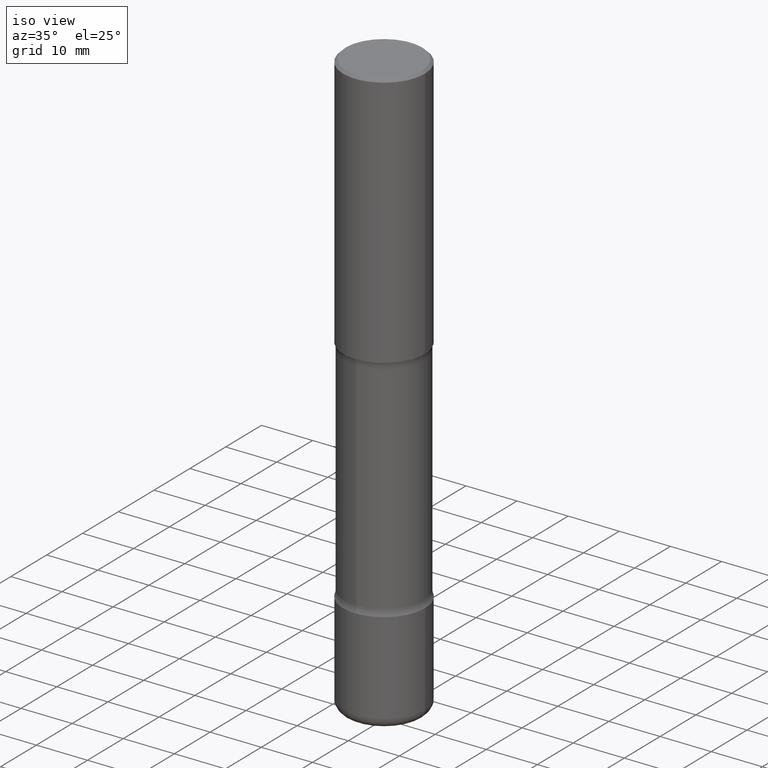
[diagram: clean part render]
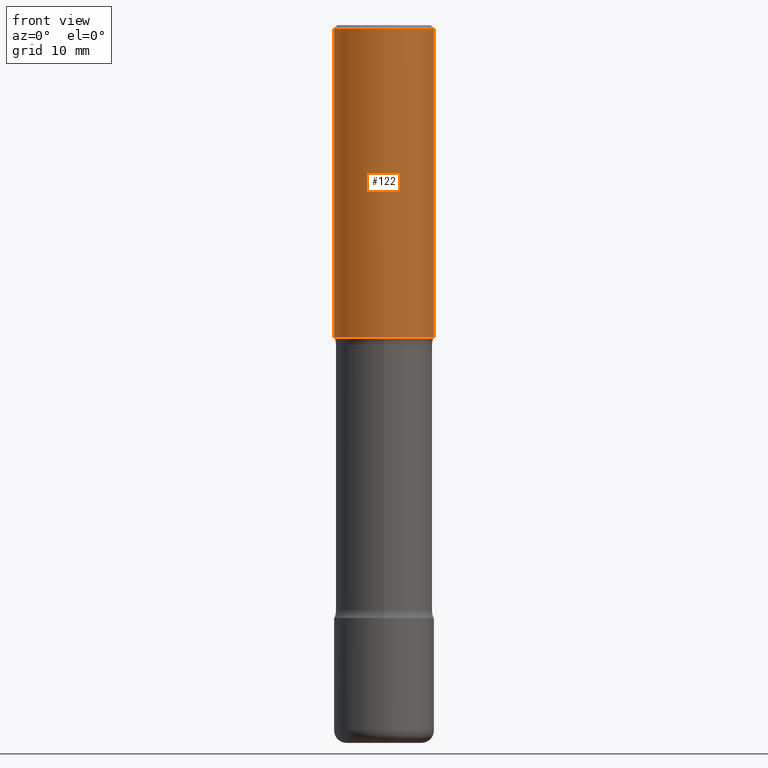
[diagram: tour spotlight — one face highlighted and labeled with its STEP entity id]
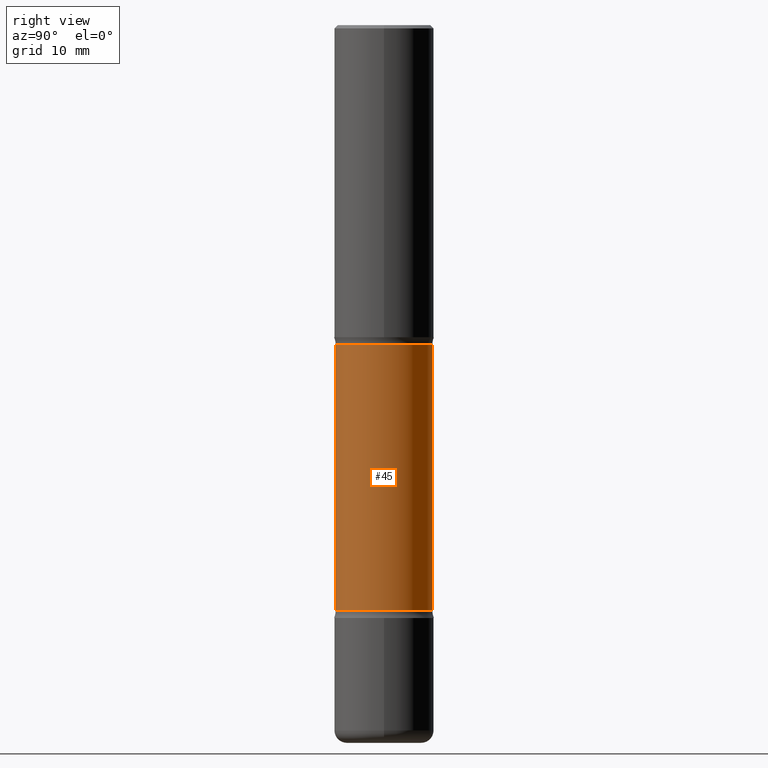
[diagram: tour spotlight — one face highlighted and labeled with its STEP entity id]
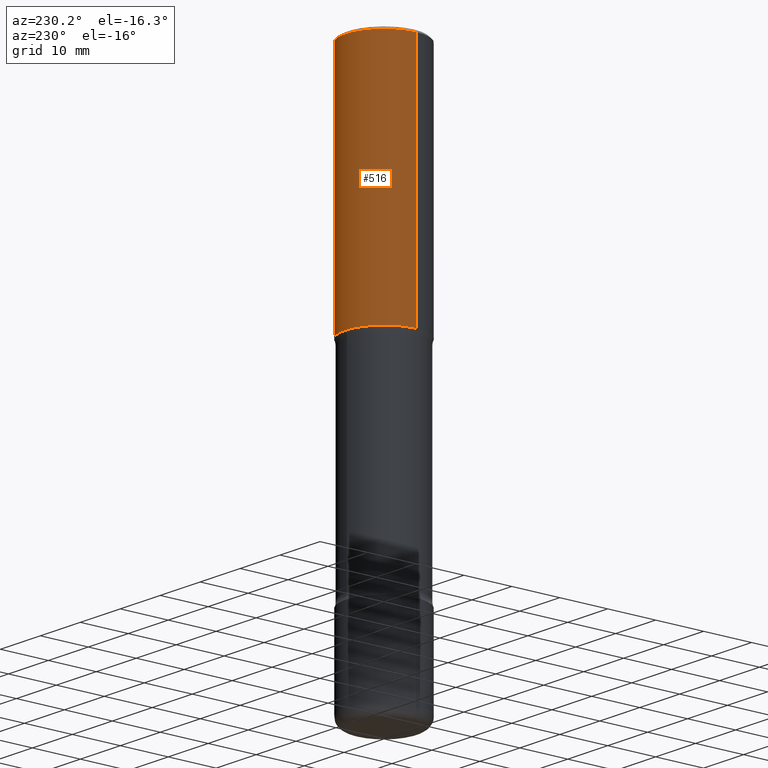
[diagram: tour spotlight — one face highlighted and labeled with its STEP entity id]
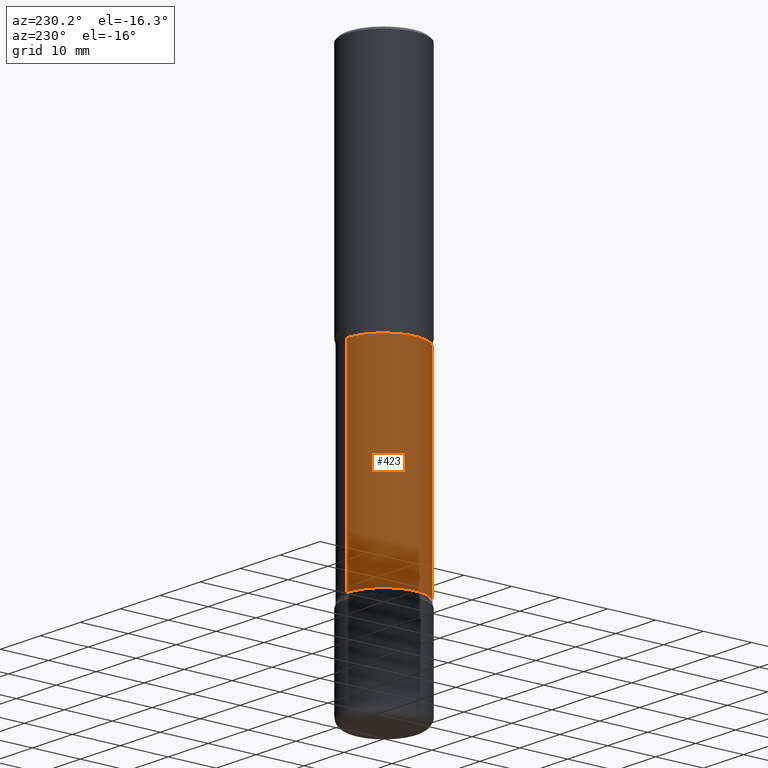
[diagram: tour spotlight — one face highlighted and labeled with its STEP entity id]
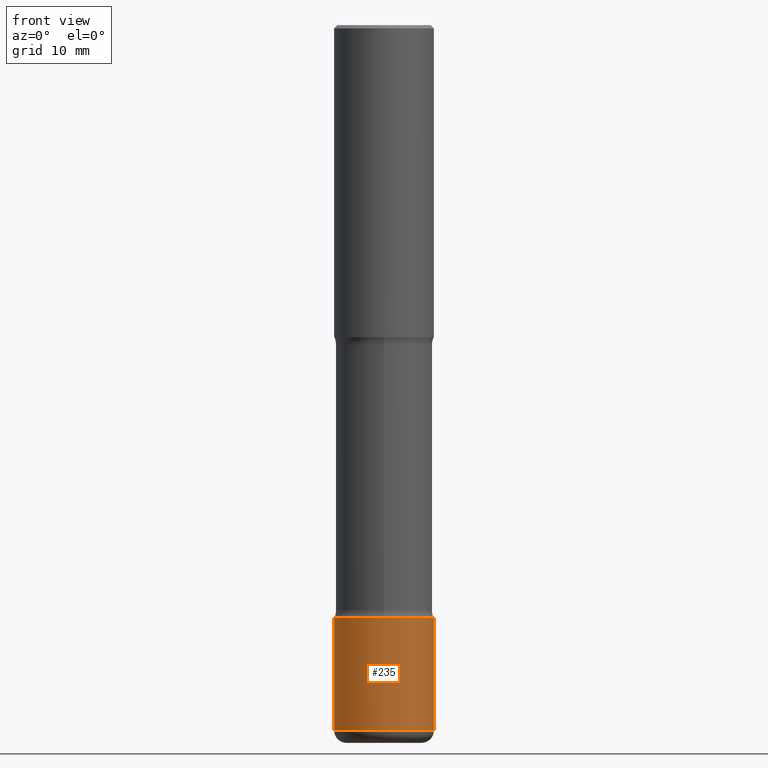
[diagram: tour spotlight — one face highlighted and labeled with its STEP entity id]
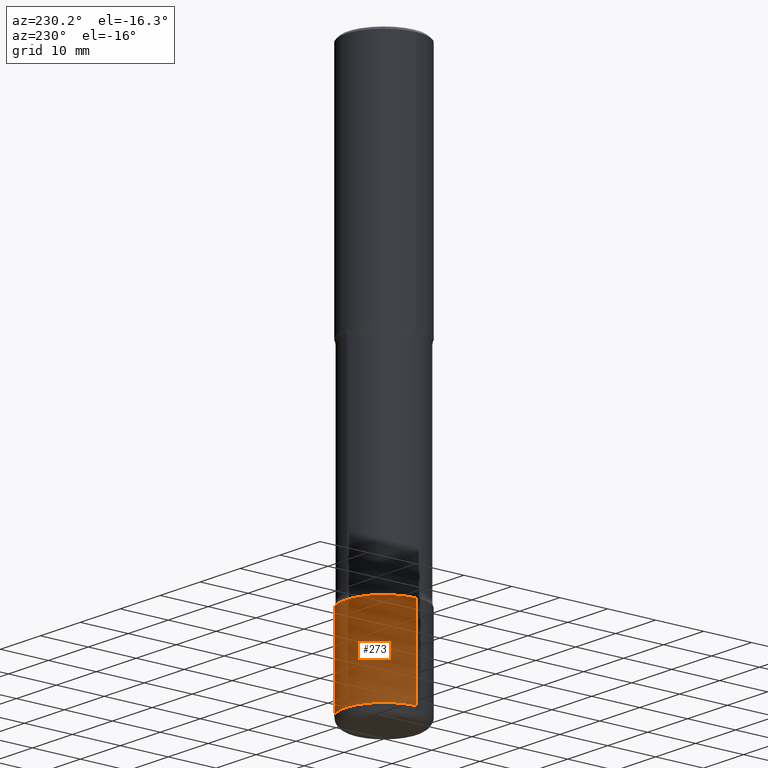
[diagram: tour spotlight — one face highlighted and labeled with its STEP entity id]
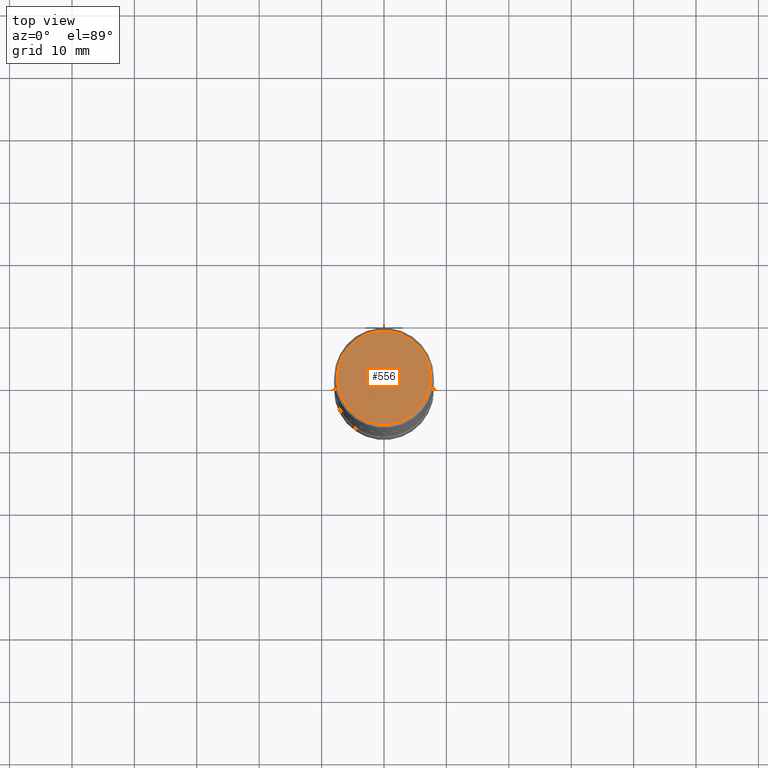
[diagram: tour spotlight — one face highlighted and labeled with its STEP entity id]
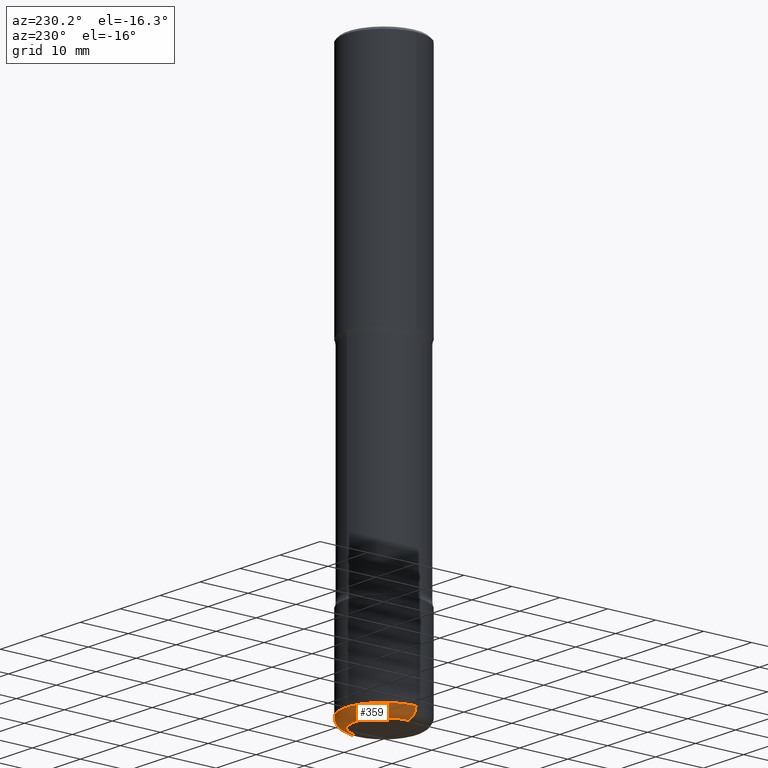
[diagram: tour spotlight — one face highlighted and labeled with its STEP entity id]
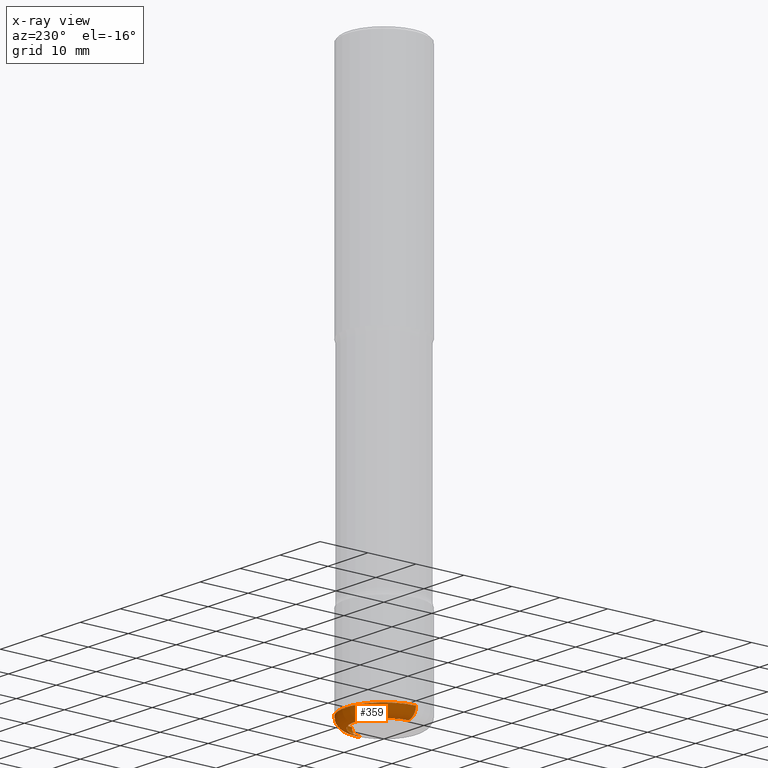
[diagram: x-ray of the same camera — body ghosted, this tour face saturated]
A machine part: a face-by-face anatomy tour. The part has 20 B-rep faces; the first image is the clean iso view, then the 8 largest visible faces are spotlighted one at a time (largest first), each with its STEP entity span.

Face 1 — front view, entity #122. In plain terms, the highlighted cylindrical surface (partial cylindrical patch) has radius 7.9997 mm, axis along (-0, 0, 1).
Definition (entity closure, byte-faithful):
#6 = CARTESIAN_POINT ( 'NONE',  ( 0.3149500000000001743, -9.072265110850023156E-15, -1.968500000000000139 ) ) ;
#13 = DIRECTION ( 'NONE',  ( 1.000000000000000000, -6.982962677686269866E-15, 0.000000000000000000 ) ) ;
#28 = CARTESIAN_POINT ( 'NONE',  ( 0.3149499999999998967, -2.230543471175006266E-15, -0.02000000000000006981 ) ) ;
#64 = VECTOR ( 'NONE', #150, 39.37007874015748143 ) ;
#73 = DIRECTION ( 'NONE',  ( -2.445468806185136597E-29, 3.491481338843145583E-15, 1.000000000000000000 ) ) ;
#104 = DIRECTION ( 'NONE',  ( -2.445468806185136597E-29, 3.491481338843145583E-15, 1.000000000000000000 ) ) ;
#119 = CARTESIAN_POINT ( 'NONE',  ( 0.3149500000000000077, -2.199284095337289871E-15, 1.535751875536930130E-29 ) ) ;
#122 = ADVANCED_FACE ( 'NONE', ( #293 ), #414, .T. ) ;
#136 = CARTESIAN_POINT ( 'NONE',  ( -0.3149500000000001743, -1.233550974868359743E-15, -1.968500000000000139 ) ) ;
#137 = VERTEX_POINT ( 'NONE', #28 ) ;
#150 = DIRECTION ( 'NONE',  ( -2.445468806185136877E-29, 3.491481338843145188E-15, 1.000000000000000000 ) ) ;
#159 = LINE ( 'NONE', #119, #455 ) ;
#179 = CIRCLE ( 'NONE', #480, 0.3149499999999998967 ) ;
#193 = LINE ( 'NONE', #309, #64 ) ;
#197 = EDGE_CURVE ( 'NONE', #408, #137, #179, .T. ) ;
#212 = EDGE_CURVE ( 'NONE', #280, #137, #159, .T. ) ;
#217 = EDGE_LOOP ( 'NONE', ( #357, #424, #234, #374 ) ) ;
#224 = CARTESIAN_POINT ( 'NONE',  ( 4.813905344975441835E-29, -6.872981015512731707E-15, -1.968500000000000139 ) ) ;
#234 = ORIENTED_EDGE ( 'NONE', *, *, #212, .T. ) ;
#250 = AXIS2_PLACEMENT_3D ( 'NONE', #224, #104, #13 ) ;
#280 = VERTEX_POINT ( 'NONE', #6 ) ;
#286 = DIRECTION ( 'NONE',  ( -2.445468806185136597E-29, 3.491481338843145583E-15, 1.000000000000000000 ) ) ;
#293 = FACE_OUTER_BOUND ( 'NONE', #217, .T. ) ;
#301 = CARTESIAN_POINT ( 'NONE',  ( -0.3149499999999998967, 2.129454468560425784E-15, -0.02000000000000006981 ) ) ;
#309 = CARTESIAN_POINT ( 'NONE',  ( -0.3149500000000000077, 2.237854346276435590E-15, -1.549218606675782676E-29 ) ) ;
#324 = DIRECTION ( 'NONE',  ( 1.000000000000000000, -6.982962677686266711E-15, 4.876176775795936353E-29 ) ) ;
#357 = ORIENTED_EDGE ( 'NONE', *, *, #500, .F. ) ;
#374 = ORIENTED_EDGE ( 'NONE', *, *, #197, .F. ) ;
#407 = AXIS2_PLACEMENT_3D ( 'NONE', #471, #73, #324 ) ;
#408 = VERTEX_POINT ( 'NONE', #301 ) ;
#414 = CYLINDRICAL_SURFACE ( 'NONE', #407, 0.3149500000000000077 ) ;
#418 = CARTESIAN_POINT ( 'NONE',  ( 4.890937612370289799E-31, -6.982962677686315028E-17, -0.02000000000000006981 ) ) ;
#424 = ORIENTED_EDGE ( 'NONE', *, *, #526, .T. ) ;
#428 = DIRECTION ( 'NONE',  ( -2.445468806185136877E-29, 3.491481338843145188E-15, 1.000000000000000000 ) ) ;
#455 = VECTOR ( 'NONE', #428, 39.37007874015748143 ) ;
#471 = CARTESIAN_POINT ( 'NONE',  ( 0.000000000000000000, 0.000000000000000000, 0.000000000000000000 ) ) ;
#480 = AXIS2_PLACEMENT_3D ( 'NONE', #418, #286, #551 ) ;
#484 = VERTEX_POINT ( 'NONE', #136 ) ;
#498 = CIRCLE ( 'NONE', #250, 0.3149500000000001743 ) ;
#500 = EDGE_CURVE ( 'NONE', #484, #408, #193, .T. ) ;
#526 = EDGE_CURVE ( 'NONE', #484, #280, #498, .T. ) ;
#551 = DIRECTION ( 'NONE',  ( 1.000000000000000000, -6.982962677686265922E-15, 0.000000000000000000 ) ) ;

Face 2 — right view, entity #45. In plain terms, the highlighted cylindrical surface (partial cylindrical patch) has radius 7.747 mm, axis along (0, -0, -1).
Definition (entity closure, byte-faithful):
#9 = VECTOR ( 'NONE', #243, 39.37007874015748143 ) ;
#41 = CARTESIAN_POINT ( 'NONE',  ( 2.129803616694422103E-15, 0.3049999999999842282, -4.527600000000001401 ) ) ;
#45 = ADVANCED_FACE ( 'NONE', ( #492 ), #270, .T. ) ;
#50 = EDGE_CURVE ( 'NONE', #292, #545, #468, .T. ) ;
#90 = LINE ( 'NONE', #41, #164 ) ;
#120 = DIRECTION ( 'NONE',  ( 2.508997697352003204E-29, -3.400504350852260021E-15, -1.000000000000000000 ) ) ;
#126 = CARTESIAN_POINT ( 'NONE',  ( 2.129803616694359388E-15, 0.3049999999999927769, -2.017372256956275756 ) ) ;
#138 = DIRECTION ( 'NONE',  ( 6.982962677686266711E-15, 1.000000000000000000, -3.582751467100674095E-15 ) ) ;
#164 = VECTOR ( 'NONE', #120, 39.37007874015748143 ) ;
#171 = CIRCLE ( 'NONE', #481, 0.3049999999999998823 ) ;
#182 = CARTESIAN_POINT ( 'NONE',  ( 9.023922048725964423E-29, -1.289264818112535948E-14, -3.691327743043727239 ) ) ;
#198 = DIRECTION ( 'NONE',  ( 2.508997697352003204E-29, -3.400504350852260021E-15, -1.000000000000000000 ) ) ;
#243 = DIRECTION ( 'NONE',  ( 2.508997697352003204E-29, -3.400504350852260021E-15, -1.000000000000000000 ) ) ;
#253 = CARTESIAN_POINT ( 'NONE',  ( 4.823971588662791399E-29, -7.200355267551965208E-15, -2.017372256956274423 ) ) ;
#255 = CARTESIAN_POINT ( 'NONE',  ( -2.126582866859184041E-15, -0.3050000000000072098, -2.017372256956273535 ) ) ;
#261 = DIRECTION ( 'NONE',  ( 6.982962677686266711E-15, 1.000000000000000000, -3.582751467100673306E-15 ) ) ;
#263 = ORIENTED_EDGE ( 'NONE', *, *, #353, .T. ) ;
#269 = DIRECTION ( 'NONE',  ( 2.508997697352003204E-29, -3.400504350852260021E-15, -1.000000000000000000 ) ) ;
#270 = CYLINDRICAL_SURFACE ( 'NONE', #532, 0.3049999999999999378 ) ;
#274 = VERTEX_POINT ( 'NONE', #345 ) ;
#287 = DIRECTION ( 'NONE',  ( 6.982962677686266711E-15, 1.000000000000000000, -3.582751467100674095E-15 ) ) ;
#292 = VERTEX_POINT ( 'NONE', #255 ) ;
#312 = ORIENTED_EDGE ( 'NONE', *, *, #50, .T. ) ;
#329 = VERTEX_POINT ( 'NONE', #126 ) ;
#345 = CARTESIAN_POINT ( 'NONE',  ( 2.129803616694400804E-15, 0.3049999999999870037, -3.691327743043728571 ) ) ;
#353 = EDGE_CURVE ( 'NONE', #329, #292, #398, .T. ) ;
#367 = ORIENTED_EDGE ( 'NONE', *, *, #413, .F. ) ;
#398 = CIRCLE ( 'NONE', #515, 0.3049999999999999933 ) ;
#413 = EDGE_CURVE ( 'NONE', #329, #274, #90, .T. ) ;
#437 = CARTESIAN_POINT ( 'NONE',  ( -2.092451889320205392E-15, -0.3050000000000157030, -4.527599999999998737 ) ) ;
#450 = CARTESIAN_POINT ( 'NONE',  ( 1.112212721578861617E-28, -1.573639562940220266E-14, -4.527600000000000513 ) ) ;
#451 = CARTESIAN_POINT ( 'NONE',  ( -2.126582866859139076E-15, -0.3050000000000128164, -3.691327743043726350 ) ) ;
#459 = ORIENTED_EDGE ( 'NONE', *, *, #536, .F. ) ;
#468 = LINE ( 'NONE', #437, #9 ) ;
#481 = AXIS2_PLACEMENT_3D ( 'NONE', #182, #269, #138 ) ;
#492 = FACE_OUTER_BOUND ( 'NONE', #524, .T. ) ;
#515 = AXIS2_PLACEMENT_3D ( 'NONE', #253, #521, #261 ) ;
#521 = DIRECTION ( 'NONE',  ( 2.508997697352003204E-29, -3.400504350852260021E-15, -1.000000000000000000 ) ) ;
#524 = EDGE_LOOP ( 'NONE', ( #263, #312, #459, #367 ) ) ;
#532 = AXIS2_PLACEMENT_3D ( 'NONE', #450, #198, #287 ) ;
#536 = EDGE_CURVE ( 'NONE', #274, #545, #171, .T. ) ;
#545 = VERTEX_POINT ( 'NONE', #451 ) ;

Face 3 — auxiliary view, entity #516. In plain terms, the highlighted cylindrical surface (partial cylindrical patch) has radius 7.9997 mm, axis along (-0, 0, 1).
Definition (entity closure, byte-faithful):
#6 = CARTESIAN_POINT ( 'NONE',  ( 0.3149500000000001743, -9.072265110850023156E-15, -1.968500000000000139 ) ) ;
#20 = CARTESIAN_POINT ( 'NONE',  ( 4.890937612370289799E-31, -6.982962677686315028E-17, -0.02000000000000006981 ) ) ;
#28 = CARTESIAN_POINT ( 'NONE',  ( 0.3149499999999998967, -2.230543471175006266E-15, -0.02000000000000006981 ) ) ;
#53 = CYLINDRICAL_SURFACE ( 'NONE', #298, 0.3149500000000000077 ) ;
#64 = VECTOR ( 'NONE', #150, 39.37007874015748143 ) ;
#85 = DIRECTION ( 'NONE',  ( 1.000000000000000000, -6.982962677686269866E-15, 0.000000000000000000 ) ) ;
#99 = DIRECTION ( 'NONE',  ( -2.445468806185136597E-29, 3.491481338843145583E-15, 1.000000000000000000 ) ) ;
#103 = ORIENTED_EDGE ( 'NONE', *, *, #212, .F. ) ;
#119 = CARTESIAN_POINT ( 'NONE',  ( 0.3149500000000000077, -2.199284095337289871E-15, 1.535751875536930130E-29 ) ) ;
#129 = AXIS2_PLACEMENT_3D ( 'NONE', #323, #162, #85 ) ;
#136 = CARTESIAN_POINT ( 'NONE',  ( -0.3149500000000001743, -1.233550974868359743E-15, -1.968500000000000139 ) ) ;
#137 = VERTEX_POINT ( 'NONE', #28 ) ;
#150 = DIRECTION ( 'NONE',  ( -2.445468806185136877E-29, 3.491481338843145188E-15, 1.000000000000000000 ) ) ;
#159 = LINE ( 'NONE', #119, #455 ) ;
#162 = DIRECTION ( 'NONE',  ( -2.445468806185136597E-29, 3.491481338843145583E-15, 1.000000000000000000 ) ) ;
#180 = CIRCLE ( 'NONE', #385, 0.3149499999999998967 ) ;
#183 = EDGE_CURVE ( 'NONE', #280, #484, #189, .T. ) ;
#189 = CIRCLE ( 'NONE', #129, 0.3149500000000001743 ) ;
#193 = LINE ( 'NONE', #309, #64 ) ;
#212 = EDGE_CURVE ( 'NONE', #280, #137, #159, .T. ) ;
#219 = CARTESIAN_POINT ( 'NONE',  ( 0.000000000000000000, 0.000000000000000000, 0.000000000000000000 ) ) ;
#280 = VERTEX_POINT ( 'NONE', #6 ) ;
#298 = AXIS2_PLACEMENT_3D ( 'NONE', #219, #99, #401 ) ;
#301 = CARTESIAN_POINT ( 'NONE',  ( -0.3149499999999998967, 2.129454468560425784E-15, -0.02000000000000006981 ) ) ;
#309 = CARTESIAN_POINT ( 'NONE',  ( -0.3149500000000000077, 2.237854346276435590E-15, -1.549218606675782676E-29 ) ) ;
#321 = ORIENTED_EDGE ( 'NONE', *, *, #183, .T. ) ;
#323 = CARTESIAN_POINT ( 'NONE',  ( 4.813905344975441835E-29, -6.872981015512731707E-15, -1.968500000000000139 ) ) ;
#358 = DIRECTION ( 'NONE',  ( 1.000000000000000000, -6.982962677686265922E-15, 0.000000000000000000 ) ) ;
#364 = FACE_OUTER_BOUND ( 'NONE', #387, .T. ) ;
#385 = AXIS2_PLACEMENT_3D ( 'NONE', #20, #406, #358 ) ;
#387 = EDGE_LOOP ( 'NONE', ( #321, #416, #553, #103 ) ) ;
#401 = DIRECTION ( 'NONE',  ( 1.000000000000000000, -6.982962677686266711E-15, 4.876176775795936353E-29 ) ) ;
#406 = DIRECTION ( 'NONE',  ( -2.445468806185136597E-29, 3.491481338843145583E-15, 1.000000000000000000 ) ) ;
#408 = VERTEX_POINT ( 'NONE', #301 ) ;
#416 = ORIENTED_EDGE ( 'NONE', *, *, #500, .T. ) ;
#428 = DIRECTION ( 'NONE',  ( -2.445468806185136877E-29, 3.491481338843145188E-15, 1.000000000000000000 ) ) ;
#455 = VECTOR ( 'NONE', #428, 39.37007874015748143 ) ;
#463 = EDGE_CURVE ( 'NONE', #137, #408, #180, .T. ) ;
#484 = VERTEX_POINT ( 'NONE', #136 ) ;
#500 = EDGE_CURVE ( 'NONE', #484, #408, #193, .T. ) ;
#516 = ADVANCED_FACE ( 'NONE', ( #364 ), #53, .T. ) ;
#553 = ORIENTED_EDGE ( 'NONE', *, *, #463, .F. ) ;

Face 4 — auxiliary view, entity #423. In plain terms, the highlighted cylindrical surface (partial cylindrical patch) has radius 7.747 mm, axis along (0, -0, -1).
Definition (entity closure, byte-faithful):
#9 = VECTOR ( 'NONE', #243, 39.37007874015748143 ) ;
#12 = ORIENTED_EDGE ( 'NONE', *, *, #50, .F. ) ;
#40 = CIRCLE ( 'NONE', #117, 0.3049999999999998823 ) ;
#41 = CARTESIAN_POINT ( 'NONE',  ( 2.129803616694422103E-15, 0.3049999999999842282, -4.527600000000001401 ) ) ;
#50 = EDGE_CURVE ( 'NONE', #292, #545, #468, .T. ) ;
#87 = CYLINDRICAL_SURFACE ( 'NONE', #476, 0.3049999999999999378 ) ;
#90 = LINE ( 'NONE', #41, #164 ) ;
#115 = ORIENTED_EDGE ( 'NONE', *, *, #457, .T. ) ;
#117 = AXIS2_PLACEMENT_3D ( 'NONE', #560, #211, #173 ) ;
#120 = DIRECTION ( 'NONE',  ( 2.508997697352003204E-29, -3.400504350852260021E-15, -1.000000000000000000 ) ) ;
#126 = CARTESIAN_POINT ( 'NONE',  ( 2.129803616694359388E-15, 0.3049999999999927769, -2.017372256956275756 ) ) ;
#141 = DIRECTION ( 'NONE',  ( 6.982962677686266711E-15, 1.000000000000000000, -3.582751467100673306E-15 ) ) ;
#164 = VECTOR ( 'NONE', #120, 39.37007874015748143 ) ;
#173 = DIRECTION ( 'NONE',  ( 6.982962677686266711E-15, 1.000000000000000000, -3.582751467100674095E-15 ) ) ;
#199 = EDGE_LOOP ( 'NONE', ( #12, #115, #308, #227 ) ) ;
#209 = FACE_OUTER_BOUND ( 'NONE', #199, .T. ) ;
#211 = DIRECTION ( 'NONE',  ( 2.508997697352003204E-29, -3.400504350852260021E-15, -1.000000000000000000 ) ) ;
#227 = ORIENTED_EDGE ( 'NONE', *, *, #332, .F. ) ;
#243 = DIRECTION ( 'NONE',  ( 2.508997697352003204E-29, -3.400504350852260021E-15, -1.000000000000000000 ) ) ;
#252 = CARTESIAN_POINT ( 'NONE',  ( 1.112212721578861617E-28, -1.573639562940220266E-14, -4.527600000000000513 ) ) ;
#255 = CARTESIAN_POINT ( 'NONE',  ( -2.126582866859184041E-15, -0.3050000000000072098, -2.017372256956273535 ) ) ;
#274 = VERTEX_POINT ( 'NONE', #345 ) ;
#292 = VERTEX_POINT ( 'NONE', #255 ) ;
#304 = AXIS2_PLACEMENT_3D ( 'NONE', #410, #525, #141 ) ;
#308 = ORIENTED_EDGE ( 'NONE', *, *, #413, .T. ) ;
#322 = DIRECTION ( 'NONE',  ( 6.982962677686266711E-15, 1.000000000000000000, -3.582751467100674095E-15 ) ) ;
#329 = VERTEX_POINT ( 'NONE', #126 ) ;
#332 = EDGE_CURVE ( 'NONE', #545, #274, #40, .T. ) ;
#344 = DIRECTION ( 'NONE',  ( 2.508997697352003204E-29, -3.400504350852260021E-15, -1.000000000000000000 ) ) ;
#345 = CARTESIAN_POINT ( 'NONE',  ( 2.129803616694400804E-15, 0.3049999999999870037, -3.691327743043728571 ) ) ;
#410 = CARTESIAN_POINT ( 'NONE',  ( 4.823971588662791399E-29, -7.200355267551965208E-15, -2.017372256956274423 ) ) ;
#413 = EDGE_CURVE ( 'NONE', #329, #274, #90, .T. ) ;
#423 = ADVANCED_FACE ( 'NONE', ( #209 ), #87, .T. ) ;
#437 = CARTESIAN_POINT ( 'NONE',  ( -2.092451889320205392E-15, -0.3050000000000157030, -4.527599999999998737 ) ) ;
#451 = CARTESIAN_POINT ( 'NONE',  ( -2.126582866859139076E-15, -0.3050000000000128164, -3.691327743043726350 ) ) ;
#457 = EDGE_CURVE ( 'NONE', #292, #329, #555, .T. ) ;
#468 = LINE ( 'NONE', #437, #9 ) ;
#476 = AXIS2_PLACEMENT_3D ( 'NONE', #252, #344, #322 ) ;
#525 = DIRECTION ( 'NONE',  ( 2.508997697352003204E-29, -3.400504350852260021E-15, -1.000000000000000000 ) ) ;
#545 = VERTEX_POINT ( 'NONE', #451 ) ;
#555 = CIRCLE ( 'NONE', #304, 0.3049999999999999933 ) ;
#560 = CARTESIAN_POINT ( 'NONE',  ( 9.023922048725964423E-29, -1.289264818112535948E-14, -3.691327743043727239 ) ) ;

Face 5 — front view, entity #235. In plain terms, the highlighted cylindrical surface (partial cylindrical patch) has radius 7.9997 mm, axis along (-0, 0, 1).
Definition (entity closure, byte-faithful):
#1 = CARTESIAN_POINT ( 'NONE',  ( 1.087964617183705593E-28, -1.553325132837927055E-14, -4.448900000000000077 ) ) ;
#2 = VECTOR ( 'NONE', #185, 39.37007874015748143 ) ;
#14 = CARTESIAN_POINT ( 'NONE',  ( -0.3149500000000002853, 2.237854346276437562E-15, -1.549218606675783797E-29 ) ) ;
#16 = CARTESIAN_POINT ( 'NONE',  ( 9.146542428893650504E-29, -1.305883850354113594E-14, -3.740200000000000635 ) ) ;
#31 = EDGE_LOOP ( 'NONE', ( #549, #495, #167, #34 ) ) ;
#34 = ORIENTED_EDGE ( 'NONE', *, *, #69, .F. ) ;
#37 = EDGE_CURVE ( 'NONE', #429, #267, #220, .T. ) ;
#43 = CARTESIAN_POINT ( 'NONE',  ( 0.3149500000000003963, -1.773253542371656516E-14, -4.448900000000000077 ) ) ;
#44 = CARTESIAN_POINT ( 'NONE',  ( 0.3149500000000002298, -1.525812259887842581E-14, -3.740200000000000635 ) ) ;
#49 = DIRECTION ( 'NONE',  ( 1.000000000000000000, -6.982962677686268288E-15, 0.000000000000000000 ) ) ;
#52 = VERTEX_POINT ( 'NONE', #43 ) ;
#59 = CARTESIAN_POINT ( 'NONE',  ( -0.3149500000000003963, -1.329539698210283299E-14, -4.448900000000000077 ) ) ;
#60 = DIRECTION ( 'NONE',  ( -2.445468806185136597E-29, 3.491481338843145583E-15, 1.000000000000000000 ) ) ;
#65 = DIRECTION ( 'NONE',  ( 1.000000000000000000, -6.982962677686264344E-15, 0.000000000000000000 ) ) ;
#69 = EDGE_CURVE ( 'NONE', #267, #405, #325, .T. ) ;
#82 = DIRECTION ( 'NONE',  ( 1.000000000000000000, -6.982962677686267499E-15, 4.876176775795936353E-29 ) ) ;
#130 = AXIS2_PLACEMENT_3D ( 'NONE', #1, #475, #49 ) ;
#163 = AXIS2_PLACEMENT_3D ( 'NONE', #16, #60, #65 ) ;
#167 = ORIENTED_EDGE ( 'NONE', *, *, #335, .T. ) ;
#185 = DIRECTION ( 'NONE',  ( -2.445468806185136877E-29, 3.491481338843145188E-15, 1.000000000000000000 ) ) ;
#215 = LINE ( 'NONE', #300, #458 ) ;
#220 = LINE ( 'NONE', #14, #2 ) ;
#235 = ADVANCED_FACE ( 'NONE', ( #548 ), #467, .T. ) ;
#267 = VERTEX_POINT ( 'NONE', #509 ) ;
#300 = CARTESIAN_POINT ( 'NONE',  ( 0.3149500000000002853, -2.199284095337291843E-15, 1.535751875536931531E-29 ) ) ;
#325 = CIRCLE ( 'NONE', #163, 0.3149500000000002298 ) ;
#333 = CARTESIAN_POINT ( 'NONE',  ( 0.000000000000000000, 0.000000000000000000, 0.000000000000000000 ) ) ;
#335 = EDGE_CURVE ( 'NONE', #52, #405, #215, .T. ) ;
#354 = AXIS2_PLACEMENT_3D ( 'NONE', #333, #470, #82 ) ;
#371 = EDGE_CURVE ( 'NONE', #429, #52, #443, .T. ) ;
#405 = VERTEX_POINT ( 'NONE', #44 ) ;
#429 = VERTEX_POINT ( 'NONE', #59 ) ;
#440 = DIRECTION ( 'NONE',  ( -2.445468806185136877E-29, 3.491481338843145188E-15, 1.000000000000000000 ) ) ;
#443 = CIRCLE ( 'NONE', #130, 0.3149500000000003408 ) ;
#458 = VECTOR ( 'NONE', #440, 39.37007874015748143 ) ;
#467 = CYLINDRICAL_SURFACE ( 'NONE', #354, 0.3149500000000002853 ) ;
#470 = DIRECTION ( 'NONE',  ( -2.445468806185136597E-29, 3.491481338843145583E-15, 1.000000000000000000 ) ) ;
#475 = DIRECTION ( 'NONE',  ( -2.445468806185136597E-29, 3.491481338843145583E-15, 1.000000000000000000 ) ) ;
#495 = ORIENTED_EDGE ( 'NONE', *, *, #371, .T. ) ;
#509 = CARTESIAN_POINT ( 'NONE',  ( -0.3149500000000002298, -1.205819056968376648E-14, -3.740200000000000635 ) ) ;
#548 = FACE_OUTER_BOUND ( 'NONE', #31, .T. ) ;
#549 = ORIENTED_EDGE ( 'NONE', *, *, #37, .F. ) ;

Face 6 — auxiliary view, entity #273. In plain terms, the highlighted cylindrical surface (partial cylindrical patch) has radius 7.9997 mm, axis along (-0, 0, 1).
Definition (entity closure, byte-faithful):
#2 = VECTOR ( 'NONE', #185, 39.37007874015748143 ) ;
#14 = CARTESIAN_POINT ( 'NONE',  ( -0.3149500000000002853, 2.237854346276437562E-15, -1.549218606675783797E-29 ) ) ;
#18 = EDGE_CURVE ( 'NONE', #405, #267, #196, .T. ) ;
#33 = ORIENTED_EDGE ( 'NONE', *, *, #246, .T. ) ;
#37 = EDGE_CURVE ( 'NONE', #429, #267, #220, .T. ) ;
#39 = EDGE_LOOP ( 'NONE', ( #33, #165, #400, #72 ) ) ;
#43 = CARTESIAN_POINT ( 'NONE',  ( 0.3149500000000003963, -1.773253542371656516E-14, -4.448900000000000077 ) ) ;
#44 = CARTESIAN_POINT ( 'NONE',  ( 0.3149500000000002298, -1.525812259887842581E-14, -3.740200000000000635 ) ) ;
#52 = VERTEX_POINT ( 'NONE', #43 ) ;
#54 = AXIS2_PLACEMENT_3D ( 'NONE', #339, #133, #441 ) ;
#59 = CARTESIAN_POINT ( 'NONE',  ( -0.3149500000000003963, -1.329539698210283299E-14, -4.448900000000000077 ) ) ;
#72 = ORIENTED_EDGE ( 'NONE', *, *, #335, .F. ) ;
#79 = DIRECTION ( 'NONE',  ( 1.000000000000000000, -6.982962677686268288E-15, 0.000000000000000000 ) ) ;
#116 = DIRECTION ( 'NONE',  ( -2.445468806185136597E-29, 3.491481338843145583E-15, 1.000000000000000000 ) ) ;
#133 = DIRECTION ( 'NONE',  ( -2.445468806185136597E-29, 3.491481338843145583E-15, 1.000000000000000000 ) ) ;
#142 = AXIS2_PLACEMENT_3D ( 'NONE', #538, #403, #277 ) ;
#165 = ORIENTED_EDGE ( 'NONE', *, *, #37, .T. ) ;
#166 = CYLINDRICAL_SURFACE ( 'NONE', #54, 0.3149500000000002853 ) ;
#185 = DIRECTION ( 'NONE',  ( -2.445468806185136877E-29, 3.491481338843145188E-15, 1.000000000000000000 ) ) ;
#196 = CIRCLE ( 'NONE', #142, 0.3149500000000002298 ) ;
#206 = AXIS2_PLACEMENT_3D ( 'NONE', #503, #116, #79 ) ;
#215 = LINE ( 'NONE', #300, #458 ) ;
#220 = LINE ( 'NONE', #14, #2 ) ;
#228 = CIRCLE ( 'NONE', #206, 0.3149500000000003408 ) ;
#246 = EDGE_CURVE ( 'NONE', #52, #429, #228, .T. ) ;
#267 = VERTEX_POINT ( 'NONE', #509 ) ;
#273 = ADVANCED_FACE ( 'NONE', ( #557 ), #166, .T. ) ;
#277 = DIRECTION ( 'NONE',  ( 1.000000000000000000, -6.982962677686264344E-15, 0.000000000000000000 ) ) ;
#300 = CARTESIAN_POINT ( 'NONE',  ( 0.3149500000000002853, -2.199284095337291843E-15, 1.535751875536931531E-29 ) ) ;
#335 = EDGE_CURVE ( 'NONE', #52, #405, #215, .T. ) ;
#339 = CARTESIAN_POINT ( 'NONE',  ( 0.000000000000000000, 0.000000000000000000, 0.000000000000000000 ) ) ;
#400 = ORIENTED_EDGE ( 'NONE', *, *, #18, .F. ) ;
#403 = DIRECTION ( 'NONE',  ( -2.445468806185136597E-29, 3.491481338843145583E-15, 1.000000000000000000 ) ) ;
#405 = VERTEX_POINT ( 'NONE', #44 ) ;
#429 = VERTEX_POINT ( 'NONE', #59 ) ;
#440 = DIRECTION ( 'NONE',  ( -2.445468806185136877E-29, 3.491481338843145188E-15, 1.000000000000000000 ) ) ;
#441 = DIRECTION ( 'NONE',  ( 1.000000000000000000, -6.982962677686267499E-15, 4.876176775795936353E-29 ) ) ;
#458 = VECTOR ( 'NONE', #440, 39.37007874015748143 ) ;
#503 = CARTESIAN_POINT ( 'NONE',  ( 1.087964617183705593E-28, -1.553325132837927055E-14, -4.448900000000000077 ) ) ;
#509 = CARTESIAN_POINT ( 'NONE',  ( -0.3149500000000002298, -1.205819056968376648E-14, -3.740200000000000635 ) ) ;
#538 = CARTESIAN_POINT ( 'NONE',  ( 9.146542428893650504E-29, -1.305883850354113594E-14, -3.740200000000000635 ) ) ;
#557 = FACE_OUTER_BOUND ( 'NONE', #39, .T. ) ;

Face 7 — top view, entity #556. In plain terms, the highlighted planar face has unit normal (0, -0, -1).
Definition (entity closure, byte-faithful):
#7 = CARTESIAN_POINT ( 'NONE',  ( -3.131554243005659264E-46, 4.471029511141341874E-32, 1.280553747030123384E-17 ) ) ;
#11 = AXIS2_PLACEMENT_3D ( 'NONE', #146, #221, #319 ) ;
#56 = FACE_OUTER_BOUND ( 'NONE', #67, .T. ) ;
#67 = EDGE_LOOP ( 'NONE', ( #223, #108 ) ) ;
#108 = ORIENTED_EDGE ( 'NONE', *, *, #393, .T. ) ;
#146 = CARTESIAN_POINT ( 'NONE',  ( 2.059624841783562880E-15, 0.2949499999999998234, -1.023409652156634547E-15 ) ) ;
#202 = VERTEX_POINT ( 'NONE', #502 ) ;
#221 = DIRECTION ( 'NONE',  ( 2.438088387897960049E-29, -3.491481338843145188E-15, -1.000000000000000000 ) ) ;
#223 = ORIENTED_EDGE ( 'NONE', *, *, #328, .T. ) ;
#258 = DIRECTION ( 'NONE',  ( -2.445468806185136597E-29, 3.491481338843145583E-15, 1.000000000000000000 ) ) ;
#260 = CIRCLE ( 'NONE', #384, 0.2949499999999998234 ) ;
#285 = VERTEX_POINT ( 'NONE', #479 ) ;
#319 = DIRECTION ( 'NONE',  ( -1.000000000000000000, 6.982962677686265922E-15, -4.876176775795935793E-29 ) ) ;
#328 = EDGE_CURVE ( 'NONE', #202, #285, #260, .T. ) ;
#342 = DIRECTION ( 'NONE',  ( 1.000000000000000000, -6.982962677686267499E-15, 4.876053491004737710E-29 ) ) ;
#350 = DIRECTION ( 'NONE',  ( 1.000000000000000000, -6.982962677686267499E-15, 4.876053491004737710E-29 ) ) ;
#384 = AXIS2_PLACEMENT_3D ( 'NONE', #514, #388, #342 ) ;
#388 = DIRECTION ( 'NONE',  ( -2.445468806185136597E-29, 3.491481338843145583E-15, 1.000000000000000000 ) ) ;
#393 = EDGE_CURVE ( 'NONE', #285, #202, #432, .T. ) ;
#432 = CIRCLE ( 'NONE', #533, 0.2949499999999998234 ) ;
#479 = CARTESIAN_POINT ( 'NONE',  ( 0.2949499999999998234, -2.127023677808859286E-15, 1.280553747031587399E-17 ) ) ;
#502 = CARTESIAN_POINT ( 'NONE',  ( -0.2949499999999998234, 2.094539655171994135E-15, 1.280553747028670770E-17 ) ) ;
#514 = CARTESIAN_POINT ( 'NONE',  ( -3.131554243005659264E-46, 4.471029511141341874E-32, 1.280553747030123384E-17 ) ) ;
#533 = AXIS2_PLACEMENT_3D ( 'NONE', #7, #258, #350 ) ;
#535 = PLANE ( 'NONE',  #11 ) ;
#556 = ADVANCED_FACE ( 'NONE', ( #56 ), #535, .F. ) ;

Face 8 — auxiliary view, entity #359. An x-ray twin of the same camera follows (body ghosted, this face saturated) — the face is partly hidden behind the body. In plain terms, the highlighted toroidal blend (fillet) surface has major radius 6.0008 mm and minor (blend) radius 1.999 mm.
Definition (entity closure, byte-faithful):
#19 = ORIENTED_EDGE ( 'NONE', *, *, #95, .T. ) ;
#38 = DIRECTION ( 'NONE',  ( -2.445468806185136597E-29, 3.491481338843145583E-15, 1.000000000000000000 ) ) ;
#43 = CARTESIAN_POINT ( 'NONE',  ( 0.3149500000000003963, -1.773253542371656516E-14, -4.448900000000000077 ) ) ;
#52 = VERTEX_POINT ( 'NONE', #43 ) ;
#59 = CARTESIAN_POINT ( 'NONE',  ( -0.3149500000000003963, -1.329539698210283299E-14, -4.448900000000000077 ) ) ;
#68 = DIRECTION ( 'NONE',  ( -1.000000000000000000, 7.105427357600995548E-15, 0.000000000000000000 ) ) ;
#74 = CIRCLE ( 'NONE', #397, 0.07870000000000024198 ) ;
#79 = DIRECTION ( 'NONE',  ( 1.000000000000000000, -6.982962677686268288E-15, 0.000000000000000000 ) ) ;
#95 = EDGE_CURVE ( 'NONE', #187, #429, #74, .T. ) ;
#101 = CIRCLE ( 'NONE', #473, 0.07870000000000024198 ) ;
#113 = EDGE_CURVE ( 'NONE', #507, #52, #101, .T. ) ;
#116 = DIRECTION ( 'NONE',  ( -2.445468806185136597E-29, 3.491481338843145583E-15, 1.000000000000000000 ) ) ;
#134 = CARTESIAN_POINT ( 'NONE',  ( -0.2362500000000003209, -1.385459411514603336E-14, -4.448900000000000077 ) ) ;
#187 = VERTEX_POINT ( 'NONE', #330 ) ;
#192 = EDGE_LOOP ( 'NONE', ( #356, #19, #420, #486 ) ) ;
#206 = AXIS2_PLACEMENT_3D ( 'NONE', #503, #116, #79 ) ;
#228 = CIRCLE ( 'NONE', #206, 0.3149500000000003408 ) ;
#242 = CARTESIAN_POINT ( 'NONE',  ( 1.107210456688382522E-28, -1.580803090974622705E-14, -4.527600000000000513 ) ) ;
#246 = EDGE_CURVE ( 'NONE', #52, #429, #228, .T. ) ;
#249 = CIRCLE ( 'NONE', #496, 0.2362500000000003209 ) ;
#254 = EDGE_CURVE ( 'NONE', #507, #187, #249, .T. ) ;
#297 = CARTESIAN_POINT ( 'NONE',  ( 1.087964617183705593E-28, -1.553325132837927055E-14, -4.448900000000000077 ) ) ;
#299 = DIRECTION ( 'NONE',  ( -2.445468806185136597E-29, 3.491481338843145583E-15, 1.000000000000000000 ) ) ;
#330 = CARTESIAN_POINT ( 'NONE',  ( -0.2362500000000003209, -1.371238533930791063E-14, -4.527600000000000513 ) ) ;
#348 = DIRECTION ( 'NONE',  ( 1.000000000000000000, -6.982962677686263555E-15, 4.883557194083111780E-29 ) ) ;
#355 = AXIS2_PLACEMENT_3D ( 'NONE', #297, #299, #348 ) ;
#356 = ORIENTED_EDGE ( 'NONE', *, *, #254, .T. ) ;
#359 = ADVANCED_FACE ( 'NONE', ( #392 ), #523, .T. ) ;
#392 = FACE_OUTER_BOUND ( 'NONE', #192, .T. ) ;
#397 = AXIS2_PLACEMENT_3D ( 'NONE', #134, #399, #68 ) ;
#399 = DIRECTION ( 'NONE',  ( 7.105427357601001859E-15, 1.000000000000000000, -3.491481338843145583E-15 ) ) ;
#420 = ORIENTED_EDGE ( 'NONE', *, *, #246, .F. ) ;
#422 = DIRECTION ( 'NONE',  ( 1.000000000000000000, -6.982962677686248567E-15, 0.000000000000000000 ) ) ;
#425 = DIRECTION ( 'NONE',  ( 1.000000000000000000, -6.982962677686268288E-15, 0.000000000000000000 ) ) ;
#429 = VERTEX_POINT ( 'NONE', #59 ) ;
#473 = AXIS2_PLACEMENT_3D ( 'NONE', #499, #552, #422 ) ;
#486 = ORIENTED_EDGE ( 'NONE', *, *, #113, .F. ) ;
#487 = CARTESIAN_POINT ( 'NONE',  ( 0.2362500000000003209, -1.745775584234961182E-14, -4.527600000000000513 ) ) ;
#496 = AXIS2_PLACEMENT_3D ( 'NONE', #242, #38, #425 ) ;
#499 = CARTESIAN_POINT ( 'NONE',  ( 0.2362500000000003209, -1.718297626098265532E-14, -4.448900000000000077 ) ) ;
#503 = CARTESIAN_POINT ( 'NONE',  ( 1.087964617183705593E-28, -1.553325132837927055E-14, -4.448900000000000077 ) ) ;
#507 = VERTEX_POINT ( 'NONE', #487 ) ;
#523 = TOROIDAL_SURFACE ( 'NONE', #355, 0.2362500000000003209, 0.07870000000000024198 ) ;
#552 = DIRECTION ( 'NONE',  ( -6.982962677686266711E-15, -1.000000000000000000, 3.491481338843145583E-15 ) ) ;